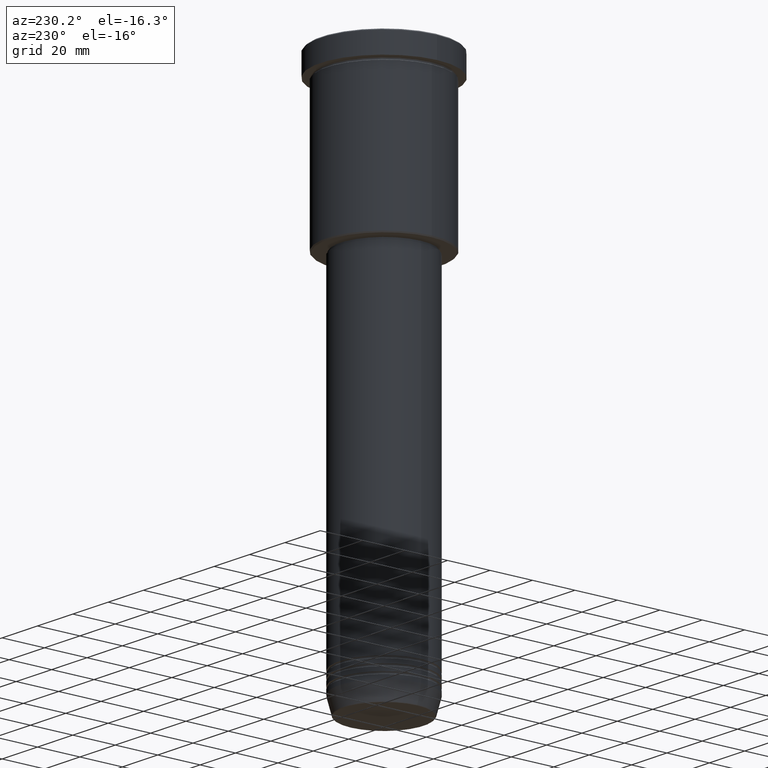
[diagram: clean part render]
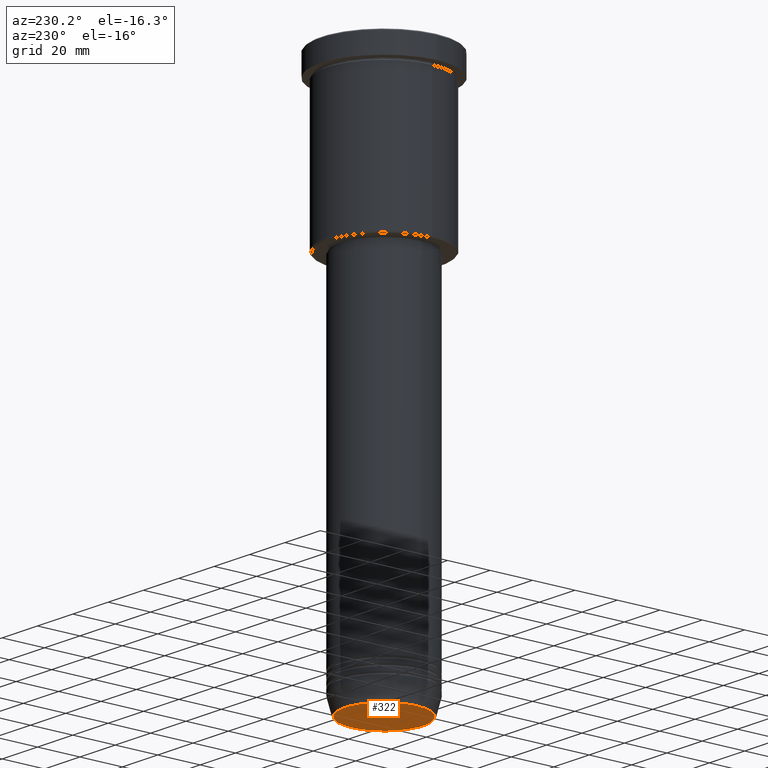
[diagram: same view with one face highlighted and labeled with its STEP entity id]
A machine part, auxiliary view. The second image highlights one B-rep face of the part: STEP entity #322.
In plain terms, the highlighted planar face has unit normal (0, -0, 1).
Its self-contained STEP definition (entity closure, byte-faithful):
#27 = ORIENTED_EDGE ( 'NONE', *, *, #631, .T. ) ;
#49 = CARTESIAN_POINT ( 'NONE',  ( 0.000000000000000000, 0.000000000000000000, -251.0000000000000000 ) ) ;
#150 = CIRCLE ( 'NONE', #1180, 18.47274296656154391 ) ;
#156 = DIRECTION ( 'NONE',  ( 1.000000000000000000, 0.000000000000000000, 0.000000000000000000 ) ) ;
#190 = CARTESIAN_POINT ( 'NONE',  ( 0.000000000000000000, 0.000000000000000000, -251.0000000000000000 ) ) ;
#216 = CIRCLE ( 'NONE', #1144, 18.47274296656154391 ) ;
#218 = EDGE_LOOP ( 'NONE', ( #27, #721 ) ) ;
#266 = EDGE_CURVE ( 'NONE', #982, #546, #150, .T. ) ;
#322 = ADVANCED_FACE ( 'NONE', ( #1005 ), #649, .F. ) ;
#350 = CARTESIAN_POINT ( 'NONE',  ( -18.47274296656154391, 2.291831503831604046E-15, -251.0000000000000000 ) ) ;
#492 = DIRECTION ( 'NONE',  ( 0.000000000000000000, 0.000000000000000000, -1.000000000000000000 ) ) ;
#546 = VERTEX_POINT ( 'NONE', #883 ) ;
#587 = CARTESIAN_POINT ( 'NONE',  ( 0.000000000000000000, 0.000000000000000000, -251.0000000000000000 ) ) ;
#631 = EDGE_CURVE ( 'NONE', #546, #982, #216, .T. ) ;
#649 = PLANE ( 'NONE',  #1065 ) ;
#721 = ORIENTED_EDGE ( 'NONE', *, *, #266, .T. ) ;
#734 = DIRECTION ( 'NONE',  ( 0.000000000000000000, 0.000000000000000000, -1.000000000000000000 ) ) ;
#744 = DIRECTION ( 'NONE',  ( 0.000000000000000000, -0.000000000000000000, 1.000000000000000000 ) ) ;
#883 = CARTESIAN_POINT ( 'NONE',  ( 18.47274296656154391, 0.000000000000000000, -251.0000000000000000 ) ) ;
#922 = DIRECTION ( 'NONE',  ( 1.000000000000000000, 0.000000000000000000, 0.000000000000000000 ) ) ;
#935 = DIRECTION ( 'NONE',  ( 1.000000000000000000, 0.000000000000000000, 0.000000000000000000 ) ) ;
#982 = VERTEX_POINT ( 'NONE', #350 ) ;
#1005 = FACE_OUTER_BOUND ( 'NONE', #218, .T. ) ;
#1065 = AXIS2_PLACEMENT_3D ( 'NONE', #190, #744, #922 ) ;
#1144 = AXIS2_PLACEMENT_3D ( 'NONE', #49, #734, #156 ) ;
#1180 = AXIS2_PLACEMENT_3D ( 'NONE', #587, #492, #935 ) ;